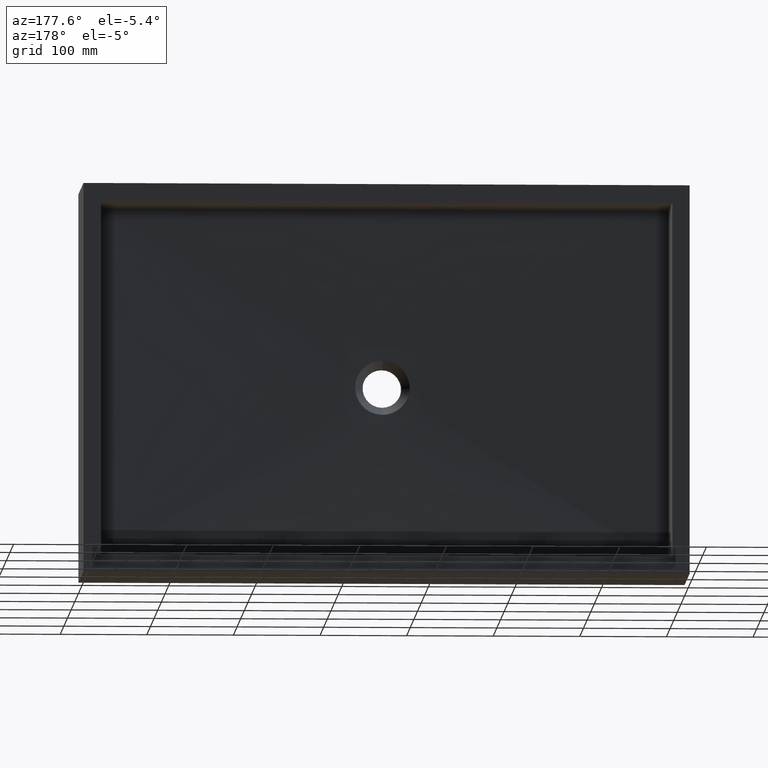
[diagram: clean part render]
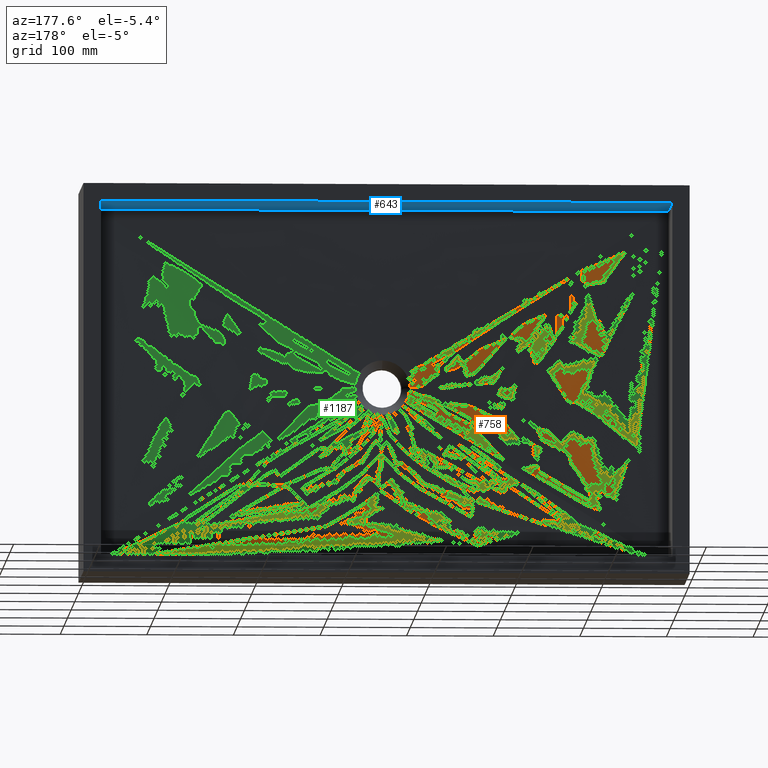
[diagram: same view with three faces highlighted in distinct colors, each labeled with its STEP entity id]
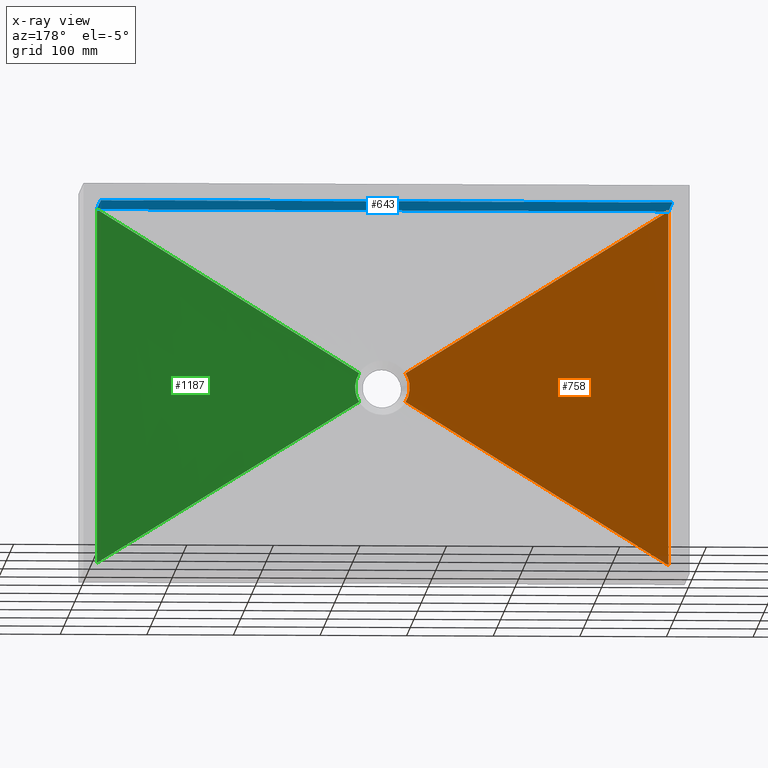
[diagram: x-ray of the same camera — body ghosted, the three highlighted faces saturated]
A machine part, auxiliary view with three faces highlighted in distinct colors.
The next image is the same camera in x-ray (body ghosted, the three faces saturated) — at least one of them is partly hidden behind the body in this view.
Their STEP definitions:

[orange] entity #758 — the highlighted face is a freeform B-spline surface patch.
#19 = LINE ( 'NONE', #312, #293 ) ;
#20 = ORIENTED_EDGE ( 'NONE', *, *, #735, .T. ) ;
#28 = ORIENTED_EDGE ( 'NONE', *, *, #736, .F. ) ;
#31 = LINE ( 'NONE', #980, #95 ) ;
#41 = VERTEX_POINT ( 'NONE', #215 ) ;
#95 = VECTOR ( 'NONE', #794, 1000.000000000000200 ) ;
#107 = CARTESIAN_POINT ( 'NONE',  ( 318.6073830098105200, 24.99999999999999600, -227.9957867683870600 ) ) ;
#119 = VERTEX_POINT ( 'NONE', #662 ) ;
#121 = CARTESIAN_POINT ( 'NONE',  ( 19.99999999999999600, 30.00000000000000000, -156.6666666666662300 ) ) ;
#132 = CARTESIAN_POINT ( 'NONE',  ( 19.99999999999999600, 30.00000000000000000, -88.33333333333313000 ) ) ;
#161 = CARTESIAN_POINT ( 'NONE',  ( 319.3460860394343400, 25.00000000000000400, -217.6011662012561500 ) ) ;
#162 = FACE_OUTER_BOUND ( 'NONE', #491, .T. ) ;
#177 = CARTESIAN_POINT ( 'NONE',  ( 19.99999999999999600, 30.00000000000000000, -139.5833333333329400 ) ) ;
#181 = CARTESIAN_POINT ( 'NONE',  ( 319.0304572677870900, 25.00000000000000400, -219.0536933469580000 ) ) ;
#197 = CARTESIAN_POINT ( 'NONE',  ( 321.8447380547628400, 25.00000000000000400, -210.8020132068291400 ) ) ;
#201 = CARTESIAN_POINT ( 'NONE',  ( 19.99999999999999600, 30.00000000000000000, -259.1666666666661200 ) ) ;
#205 = CARTESIAN_POINT ( 'NONE',  ( 318.5000000000000600, 25.00000000000000700, -226.4979317703671000 ) ) ;
#215 = CARTESIAN_POINT ( 'NONE',  ( 20.00000000000001800, 30.00000000000000400, -430.0000000000000000 ) ) ;
#222 = CARTESIAN_POINT ( 'NONE',  ( 318.5000000000000600, 25.00000000000000700, -226.4979317703671000 ) ) ;
#245 = CARTESIAN_POINT ( 'NONE',  ( 20.00000000000000000, 30.00000000000000400, -430.0000000000000000 ) ) ;
#293 = VECTOR ( 'NONE', #487, 1000.000000000000000 ) ;
#312 = CARTESIAN_POINT ( 'NONE',  ( 171.6213002962002500, 27.50000000000000400, -114.1889895779425900 ) ) ;
#319 = CARTESIAN_POINT ( 'NONE',  ( 318.6073830098105200, 25.00000000000000000, -222.0042132316130500 ) ) ;
#346 = CARTESIAN_POINT ( 'NONE',  ( 319.3460860394343400, 24.99999999999999600, -232.3988337987440200 ) ) ;
#385 = CARTESIAN_POINT ( 'NONE',  ( 323.2426005924004400, 25.00000000000000000, -208.3779791558851900 ) ) ;
#387 = CARTESIAN_POINT ( 'NONE',  ( 20.00000000000000000, 30.00000000000000400, -20.00000000000012800 ) ) ;
#434 = CARTESIAN_POINT ( 'NONE',  ( 19.99999999999999600, 30.00000000000000000, -190.8333333333328300 ) ) ;
#438 = CARTESIAN_POINT ( 'NONE',  ( 20.00000000000000000, 30.00000000000000000, -242.0833333333328000 ) ) ;
#439 = CARTESIAN_POINT ( 'NONE',  ( 19.99999999999999600, 30.00000000000000000, -105.4166666666664000 ) ) ;
#458 = CARTESIAN_POINT ( 'NONE',  ( 322.5116704946697700, 25.00000000000000400, -240.4454016624021300 ) ) ;
#467 = CARTESIAN_POINT ( 'NONE',  ( 321.8447380547628400, 25.00000000000000400, -239.1979867931709400 ) ) ;
#472 = CARTESIAN_POINT ( 'NONE',  ( 320.1671080139870500, 25.00000000000000400, -235.2178147582585300 ) ) ;
#475 = CARTESIAN_POINT ( 'NONE',  ( 320.6723928067730200, 24.99999999999999600, -236.5841728450399700 ) ) ;
#484 = CARTESIAN_POINT ( 'NONE',  ( 323.2426005924004400, 25.00000000000000000, -241.6220208441149300 ) ) ;
#487 = DIRECTION ( 'NONE',  ( 0.8493579470568617400, -0.01400459476006333400, -0.5276314519595658400 ) ) ;
#490 = CARTESIAN_POINT ( 'NONE',  ( 20.00000000000000000, 30.00000000000000400, -20.00000000000000000 ) ) ;
#491 = EDGE_LOOP ( 'NONE', ( #20, #28, #789, #592 ) ) ;
#500 = CARTESIAN_POINT ( 'NONE',  ( 322.5116704946697700, 25.00000000000000400, -209.5545983375979800 ) ) ;
#504 = CARTESIAN_POINT ( 'NONE',  ( 320.1671080139870500, 25.00000000000000700, -214.7821852417416200 ) ) ;
#506 = CARTESIAN_POINT ( 'NONE',  ( 319.0304572677870900, 25.00000000000000000, -230.9463066530420600 ) ) ;
#515 = CARTESIAN_POINT ( 'NONE',  ( 318.4999999999999400, 25.00000000000000400, -223.5020682296331200 ) ) ;
#518 = CARTESIAN_POINT ( 'NONE',  ( 318.6073830098105200, 24.99999999999999600, -227.9957867683870600 ) ) ;
#521 = EDGE_CURVE ( 'NONE', #119, #41, #31, .T. ) ;
#524 = CARTESIAN_POINT ( 'NONE',  ( 323.2426005924004400, 25.00000000000000000, -208.3779791558851900 ) ) ;
#542 = CARTESIAN_POINT ( 'NONE',  ( 321.8447380547628400, 25.00000000000000400, -210.8020132068291400 ) ) ;
#547 = LINE ( 'NONE', #881, #903 ) ;
#558 = CARTESIAN_POINT ( 'NONE',  ( 322.5116704946697700, 25.00000000000000400, -240.4454016624021300 ) ) ;
#579 = CARTESIAN_POINT ( 'NONE',  ( 321.8447380547628400, 25.00000000000000400, -239.1979867931709400 ) ) ;
#581 = CARTESIAN_POINT ( 'NONE',  ( 19.99999999999999600, 30.00000000000000400, -412.9166666666665700 ) ) ;
#586 = CARTESIAN_POINT ( 'NONE',  ( 320.6723928067730200, 24.99999999999999600, -236.5841728450399700 ) ) ;
#592 = ORIENTED_EDGE ( 'NONE', *, *, #521, .F. ) ;
#597 = CARTESIAN_POINT ( 'NONE',  ( 19.99999999999999600, 30.00000000000000400, -395.8333333333331400 ) ) ;
#608 = CARTESIAN_POINT ( 'NONE',  ( 318.6073830098105200, 25.00000000000000000, -222.0042132316130500 ) ) ;
#611 = CARTESIAN_POINT ( 'NONE',  ( 319.0304572677870900, 25.00000000000000400, -219.0536933469580000 ) ) ;
#622 = CARTESIAN_POINT ( 'NONE',  ( 319.3460860394343400, 25.00000000000000400, -217.6011662012561500 ) ) ;
#623 = CARTESIAN_POINT ( 'NONE',  ( 319.3460860394343400, 24.99999999999999600, -232.3988337987440200 ) ) ;
#624 = CARTESIAN_POINT ( 'NONE',  ( 19.99999999999999600, 30.00000000000000000, -207.9166666666661500 ) ) ;
#630 = CARTESIAN_POINT ( 'NONE',  ( 19.99999999999999600, 30.00000000000000000, -344.5833333333330300 ) ) ;
#631 = CARTESIAN_POINT ( 'NONE',  ( 320.1671080139870500, 25.00000000000000400, -235.2178147582585300 ) ) ;
#636 = CARTESIAN_POINT ( 'NONE',  ( 19.99999999999999600, 30.00000000000000000, -361.6666666666663400 ) ) ;
#662 = CARTESIAN_POINT ( 'NONE',  ( 323.2426005924004400, 25.00000000000000000, -241.6220208441149300 ) ) ;
#669 = CARTESIAN_POINT ( 'NONE',  ( 19.99999999999999600, 30.00000000000000000, -310.4166666666662300 ) ) ;
#677 = VERTEX_POINT ( 'NONE', #385 ) ;
#699 = CARTESIAN_POINT ( 'NONE',  ( 19.99999999999999600, 30.00000000000000000, -293.3333333333328600 ) ) ;
#735 = EDGE_CURVE ( 'NONE', #119, #677, #943, .T. ) ;
#736 = EDGE_CURVE ( 'NONE', #1175, #677, #19, .T. ) ;
#758 = ADVANCED_FACE ( 'NONE', ( #162 ), #1144, .T. ) ;
#789 = ORIENTED_EDGE ( 'NONE', *, *, #1156, .T. ) ;
#794 = DIRECTION ( 'NONE',  ( -0.8493579470568618500, 0.01400459476006333600, -0.5276314519595655100 ) ) ;
#804 = CARTESIAN_POINT ( 'NONE',  ( 323.2426005924004400, 25.00000000000000000, -241.6220208441149300 ) ) ;
#822 = CARTESIAN_POINT ( 'NONE',  ( 320.1671080139870500, 25.00000000000000700, -214.7821852417416200 ) ) ;
#861 = CARTESIAN_POINT ( 'NONE',  ( 19.99999999999999600, 30.00000000000000000, -54.16666666666660700 ) ) ;
#863 = CARTESIAN_POINT ( 'NONE',  ( 322.5116704946697700, 25.00000000000000400, -209.5545983375979800 ) ) ;
#880 = DIRECTION ( 'NONE',  ( 2.030895776753327800E-016, -0.0000000000000000000, -1.000000000000000000 ) ) ;
#881 = CARTESIAN_POINT ( 'NONE',  ( 19.99999999999999600, 30.00000000000000000, -224.9999999999994900 ) ) ;
#893 = CARTESIAN_POINT ( 'NONE',  ( 323.2426005924004400, 25.00000000000000000, -208.3779791558851900 ) ) ;
#903 = VECTOR ( 'NONE', #880, 1000.000000000000000 ) ;
#942 = CARTESIAN_POINT ( 'NONE',  ( 319.0304572677870900, 25.00000000000000000, -230.9463066530420600 ) ) ;
#943 = B_SPLINE_CURVE_WITH_KNOTS ( 'NONE', 3,
 ( #484, #458, #467, #475, #472, #346, #506, #518, #205, #515, #608, #611, #622, #504, #989, #542, #500, #524 ),
 .UNSPECIFIED., .F., .F.,
 ( 4, 2, 2, 2, 2, 2, 2, 2, 4 ),
 ( 0.0000000000000000000, 0.1250000000000000000, 0.2500000000000000000, 0.3750000000000000000, 0.5000000000000000000, 0.6250000000000000000, 0.7500000000000000000, 0.8750000000000000000, 1.000000000000000000 ),
 .UNSPECIFIED. ) ;
#980 = CARTESIAN_POINT ( 'NONE',  ( 171.6213002962002500, 27.50000000000000400, -335.8110104220574500 ) ) ;
#989 = CARTESIAN_POINT ( 'NONE',  ( 320.6723928067731300, 25.00000000000000000, -213.4158271549601700 ) ) ;
#1116 = CARTESIAN_POINT ( 'NONE',  ( 318.4999999999999400, 25.00000000000000400, -223.5020682296331200 ) ) ;
#1144 = B_SPLINE_SURFACE_WITH_KNOTS ( 'NONE', 3, 1, ( 
 ( #804, #245 ),
 ( #558, #581 ),
 ( #579, #597 ),
 ( #586, #636 ),
 ( #631, #630 ),
 ( #623, #669 ),
 ( #942, #699 ),
 ( #107, #201 ),
 ( #222, #438 ),
 ( #1116, #624 ),
 ( #319, #434 ),
 ( #181, #121 ),
 ( #161, #177 ),
 ( #822, #439 ),
 ( #1162, #132 ),
 ( #197, #861 ),
 ( #863, #1160 ),
 ( #893, #387 ) ),
 .UNSPECIFIED., .F., .F., .F.,
 ( 4, 2, 2, 2, 2, 2, 2, 2, 4 ),
 ( 2, 2 ),
 ( 0.0000000000000000000, 0.1250000000000000000, 0.2500000000000000000, 0.3750000000000000000, 0.5000000000000000000, 0.6250000000000000000, 0.7500000000000000000, 0.8750000000000000000, 1.000000000000000000 ),
 ( 0.0000000000000000000, 1.000000000000000000 ),
 .UNSPECIFIED. ) ;
#1156 = EDGE_CURVE ( 'NONE', #1175, #41, #547, .T. ) ;
#1160 = CARTESIAN_POINT ( 'NONE',  ( 19.99999999999999600, 30.00000000000000000, -37.08333333333335700 ) ) ;
#1162 = CARTESIAN_POINT ( 'NONE',  ( 320.6723928067731300, 25.00000000000000000, -213.4158271549601700 ) ) ;
#1175 = VERTEX_POINT ( 'NONE', #490 ) ;

[blue] entity #643 — the highlighted planar face has unit normal (-0, 0, 1).
#5 = VERTEX_POINT ( 'NONE', #721 ) ;
#68 = LINE ( 'NONE', #855, #105 ) ;
#78 = LINE ( 'NONE', #568, #1127 ) ;
#105 = VECTOR ( 'NONE', #997, 1000.000000000000000 ) ;
#193 = VERTEX_POINT ( 'NONE', #497 ) ;
#211 = EDGE_CURVE ( 'NONE', #424, #5, #496, .T. ) ;
#239 = DIRECTION ( 'NONE',  ( 1.000000000000000000, 0.0000000000000000000, 0.0000000000000000000 ) ) ;
#302 = FACE_OUTER_BOUND ( 'NONE', #483, .T. ) ;
#424 = VERTEX_POINT ( 'NONE', #1197 ) ;
#427 = VECTOR ( 'NONE', #834, 1000.000000000000000 ) ;
#483 = EDGE_LOOP ( 'NONE', ( #584, #1158, #1118, #646 ) ) ;
#496 = LINE ( 'NONE', #918, #427 ) ;
#497 = CARTESIAN_POINT ( 'NONE',  ( 679.9999999999998900, 30.00000000000002800, -20.00000000000000000 ) ) ;
#531 = CARTESIAN_POINT ( 'NONE',  ( 20.00000000000000000, -776.9813382572325500, -20.00000000000000000 ) ) ;
#568 = CARTESIAN_POINT ( 'NONE',  ( 679.9999999999998900, -776.9813382572325500, -20.00000000000000000 ) ) ;
#571 = AXIS2_PLACEMENT_3D ( 'NONE', #531, #1217, #239 ) ;
#584 = ORIENTED_EDGE ( 'NONE', *, *, #1005, .T. ) ;
#594 = PLANE ( 'NONE',  #571 ) ;
#643 = ADVANCED_FACE ( 'NONE', ( #302 ), #594, .F. ) ;
#646 = ORIENTED_EDGE ( 'NONE', *, *, #775, .F. ) ;
#721 = CARTESIAN_POINT ( 'NONE',  ( 679.9999999999998900, 140.0000000000000000, -20.00000000000000000 ) ) ;
#775 = EDGE_CURVE ( 'NONE', #193, #5, #78, .T. ) ;
#800 = DIRECTION ( 'NONE',  ( -1.000000000000000000, -0.0000000000000000000, -1.261617073437679700E-016 ) ) ;
#834 = DIRECTION ( 'NONE',  ( 1.000000000000000000, 0.0000000000000000000, 0.0000000000000000000 ) ) ;
#841 = DIRECTION ( 'NONE',  ( -0.0000000000000000000, 1.000000000000000000, -0.0000000000000000000 ) ) ;
#855 = CARTESIAN_POINT ( 'NONE',  ( 20.00000000000000000, -776.9813382572325500, -20.00000000000000000 ) ) ;
#862 = VECTOR ( 'NONE', #800, 1000.000000000000000 ) ;
#918 = CARTESIAN_POINT ( 'NONE',  ( 20.00000000000000000, 140.0000000000000000, -20.00000000000000000 ) ) ;
#997 = DIRECTION ( 'NONE',  ( -0.0000000000000000000, 1.000000000000000000, -0.0000000000000000000 ) ) ;
#1000 = EDGE_CURVE ( 'NONE', #1060, #424, #68, .T. ) ;
#1005 = EDGE_CURVE ( 'NONE', #193, #1060, #1112, .T. ) ;
#1060 = VERTEX_POINT ( 'NONE', #1203 ) ;
#1112 = LINE ( 'NONE', #1173, #862 ) ;
#1118 = ORIENTED_EDGE ( 'NONE', *, *, #211, .T. ) ;
#1127 = VECTOR ( 'NONE', #841, 1000.000000000000000 ) ;
#1158 = ORIENTED_EDGE ( 'NONE', *, *, #1000, .T. ) ;
#1173 = CARTESIAN_POINT ( 'NONE',  ( 349.9999999999997700, 30.00000000000000000, -19.99999999999999600 ) ) ;
#1197 = CARTESIAN_POINT ( 'NONE',  ( 20.00000000000000000, 140.0000000000000000, -20.00000000000000000 ) ) ;
#1203 = CARTESIAN_POINT ( 'NONE',  ( 20.00000000000000000, 30.00000000000002800, -20.00000000000000000 ) ) ;
#1217 = DIRECTION ( 'NONE',  ( -0.0000000000000000000, 0.0000000000000000000, 1.000000000000000000 ) ) ;

[green] entity #1187 — the highlighted face is a freeform B-spline surface patch.
#26 = VERTEX_POINT ( 'NONE', #686 ) ;
#43 = CARTESIAN_POINT ( 'NONE',  ( 379.8328919860130100, 25.00000000000000400, -214.7821852417416200 ) ) ;
#45 = LINE ( 'NONE', #323, #257 ) ;
#49 = CARTESIAN_POINT ( 'NONE',  ( 679.9999999999998900, 30.00000000000000400, -20.00000000000000000 ) ) ;
#51 = VERTEX_POINT ( 'NONE', #284 ) ;
#64 = CARTESIAN_POINT ( 'NONE',  ( 381.5000000000000600, 25.00000000000000700, -223.5020682296331000 ) ) ;
#72 = LINE ( 'NONE', #596, #683 ) ;
#82 = CARTESIAN_POINT ( 'NONE',  ( 381.5000000000001100, 25.00000000000000400, -226.4979317703671300 ) ) ;
#96 = CARTESIAN_POINT ( 'NONE',  ( 376.7573994075996200, 25.00000000000000000, -208.3779791558851900 ) ) ;
#98 = CARTESIAN_POINT ( 'NONE',  ( 380.6539139605657700, 25.00000000000000400, -232.3988337987440200 ) ) ;
#101 = CARTESIAN_POINT ( 'NONE',  ( 380.9695427322130300, 25.00000000000000400, -230.9463066530420300 ) ) ;
#113 = CARTESIAN_POINT ( 'NONE',  ( 679.9999999999998900, 30.00000000000000000, -190.8333333333332900 ) ) ;
#117 = FACE_OUTER_BOUND ( 'NONE', #1117, .T. ) ;
#130 = CARTESIAN_POINT ( 'NONE',  ( 379.3276071932269200, 24.99999999999999600, -213.4158271549601400 ) ) ;
#157 = CARTESIAN_POINT ( 'NONE',  ( 376.7573994075996200, 25.00000000000000000, -241.6220208441149300 ) ) ;
#189 = CARTESIAN_POINT ( 'NONE',  ( 380.9695427322130900, 25.00000000000000000, -219.0536933469580300 ) ) ;
#227 = CARTESIAN_POINT ( 'NONE',  ( 377.4883295053303400, 25.00000000000000400, -240.4454016624022200 ) ) ;
#228 = CARTESIAN_POINT ( 'NONE',  ( 679.9999999999998900, 30.00000000000000000, -259.1666666666666300 ) ) ;
#230 = CARTESIAN_POINT ( 'NONE',  ( 380.6539139605657700, 24.99999999999999600, -217.6011662012561200 ) ) ;
#238 = CARTESIAN_POINT ( 'NONE',  ( 378.1552619452373800, 25.00000000000000400, -210.8020132068291400 ) ) ;
#247 = VECTOR ( 'NONE', #849, 1000.000000000000000 ) ;
#256 = CARTESIAN_POINT ( 'NONE',  ( 679.9999999999998900, 30.00000000000000400, -429.9999999999998900 ) ) ;
#257 = VECTOR ( 'NONE', #365, 1000.000000000000100 ) ;
#258 = CARTESIAN_POINT ( 'NONE',  ( 380.9695427322130900, 25.00000000000000000, -219.0536933469580300 ) ) ;
#274 = CARTESIAN_POINT ( 'NONE',  ( 679.9999999999998900, 30.00000000000000000, -361.6666666666665700 ) ) ;
#278 = CARTESIAN_POINT ( 'NONE',  ( 381.3926169901894800, 24.99999999999999600, -222.0042132316130500 ) ) ;
#284 = CARTESIAN_POINT ( 'NONE',  ( 679.9999999999998900, 30.00000000000000400, -429.9999999999998900 ) ) ;
#299 = CARTESIAN_POINT ( 'NONE',  ( 381.5000000000000600, 25.00000000000000700, -223.5020682296331000 ) ) ;
#301 = CARTESIAN_POINT ( 'NONE',  ( 679.9999999999998900, 30.00000000000000400, -20.00000000000000000 ) ) ;
#323 = CARTESIAN_POINT ( 'NONE',  ( 528.3786997037998400, 27.50000000000000400, -114.1889895779425900 ) ) ;
#330 = ORIENTED_EDGE ( 'NONE', *, *, #958, .T. ) ;
#351 = CARTESIAN_POINT ( 'NONE',  ( 379.3276071932270400, 25.00000000000000000, -236.5841728450399700 ) ) ;
#357 = CARTESIAN_POINT ( 'NONE',  ( 378.1552619452373300, 25.00000000000000400, -239.1979867931709700 ) ) ;
#358 = CARTESIAN_POINT ( 'NONE',  ( 528.3786997037998400, 27.50000000000000400, -335.8110104220573900 ) ) ;
#365 = DIRECTION ( 'NONE',  ( 0.8493579470568616300, 0.01400459476006333700, 0.5276314519595660700 ) ) ;
#367 = CARTESIAN_POINT ( 'NONE',  ( 381.3926169901894800, 25.00000000000000000, -227.9957867683871200 ) ) ;
#370 = CARTESIAN_POINT ( 'NONE',  ( 377.4883295053302800, 25.00000000000000400, -209.5545983375979500 ) ) ;
#408 = CARTESIAN_POINT ( 'NONE',  ( 376.7573994075996200, 25.00000000000000000, -241.6220208441149300 ) ) ;
#432 = CARTESIAN_POINT ( 'NONE',  ( 376.7573994075996200, 25.00000000000000000, -241.6220208441149300 ) ) ;
#446 = CARTESIAN_POINT ( 'NONE',  ( 381.3926169901894800, 25.00000000000000000, -227.9957867683871200 ) ) ;
#468 = CARTESIAN_POINT ( 'NONE',  ( 679.9999999999998900, 30.00000000000000000, -344.5833333333332600 ) ) ;
#469 = VERTEX_POINT ( 'NONE', #157 ) ;
#499 = B_SPLINE_CURVE_WITH_KNOTS ( 'NONE', 3,
 ( #768, #370, #238, #731, #43, #806, #189, #278, #299, #82, #367, #101, #940, #1059, #351, #1171, #227, #432 ),
 .UNSPECIFIED., .F., .F.,
 ( 4, 2, 2, 2, 2, 2, 2, 2, 4 ),
 ( 0.0000000000000000000, 0.1250000000000000000, 0.2500000000000000000, 0.3750000000000000000, 0.5000000000000000000, 0.6250000000000000000, 0.7500000000000000000, 0.8750000000000000000, 1.000000000000000000 ),
 .UNSPECIFIED. ) ;
#530 = CARTESIAN_POINT ( 'NONE',  ( 679.9999999999998900, 30.00000000000000000, -207.9166666666666000 ) ) ;
#543 = LINE ( 'NONE', #358, #247 ) ;
#549 = DIRECTION ( 'NONE',  ( -0.0000000000000000000, -0.0000000000000000000, 1.000000000000000000 ) ) ;
#596 = CARTESIAN_POINT ( 'NONE',  ( 679.9999999999998900, 30.00000000000000000, -224.9999999999999100 ) ) ;
#619 = CARTESIAN_POINT ( 'NONE',  ( 679.9999999999998900, 30.00000000000000000, -293.3333333333332000 ) ) ;
#647 = CARTESIAN_POINT ( 'NONE',  ( 679.9999999999998900, 30.00000000000000000, -105.4166666666666400 ) ) ;
#683 = VECTOR ( 'NONE', #549, 1000.000000000000000 ) ;
#686 = CARTESIAN_POINT ( 'NONE',  ( 376.7573994075996200, 25.00000000000000000, -208.3779791558851900 ) ) ;
#696 = CARTESIAN_POINT ( 'NONE',  ( 381.5000000000001100, 25.00000000000000400, -226.4979317703671300 ) ) ;
#714 = CARTESIAN_POINT ( 'NONE',  ( 378.1552619452373800, 25.00000000000000400, -210.8020132068291400 ) ) ;
#731 = CARTESIAN_POINT ( 'NONE',  ( 379.3276071932269200, 24.99999999999999600, -213.4158271549601400 ) ) ;
#733 = CARTESIAN_POINT ( 'NONE',  ( 379.3276071932270400, 25.00000000000000000, -236.5841728450399700 ) ) ;
#741 = CARTESIAN_POINT ( 'NONE',  ( 377.4883295053302800, 25.00000000000000400, -209.5545983375979500 ) ) ;
#764 = CARTESIAN_POINT ( 'NONE',  ( 679.9999999999998900, 30.00000000000000000, -395.8333333333332600 ) ) ;
#768 = CARTESIAN_POINT ( 'NONE',  ( 376.7573994075996200, 25.00000000000000000, -208.3779791558851900 ) ) ;
#769 = CARTESIAN_POINT ( 'NONE',  ( 679.9999999999998900, 30.00000000000000000, -156.6666666666666300 ) ) ;
#793 = CARTESIAN_POINT ( 'NONE',  ( 379.8328919860130100, 25.00000000000000700, -235.2178147582585000 ) ) ;
#806 = CARTESIAN_POINT ( 'NONE',  ( 380.6539139605657700, 24.99999999999999600, -217.6011662012561200 ) ) ;
#811 = CARTESIAN_POINT ( 'NONE',  ( 380.9695427322130300, 25.00000000000000400, -230.9463066530420300 ) ) ;
#813 = B_SPLINE_SURFACE_WITH_KNOTS ( 'NONE', 3, 1, ( 
 ( #96, #301 ),
 ( #741, #913 ),
 ( #714, #827 ),
 ( #130, #1016 ),
 ( #1152, #647 ),
 ( #230, #973 ),
 ( #258, #769 ),
 ( #898, #113 ),
 ( #64, #530 ),
 ( #696, #1192 ),
 ( #446, #228 ),
 ( #811, #619 ),
 ( #98, #910 ),
 ( #793, #468 ),
 ( #733, #274 ),
 ( #357, #764 ),
 ( #840, #1020 ),
 ( #408, #256 ) ),
 .UNSPECIFIED., .F., .F., .F.,
 ( 4, 2, 2, 2, 2, 2, 2, 2, 4 ),
 ( 2, 2 ),
 ( 0.0000000000000000000, 0.1250000000000000000, 0.2500000000000000000, 0.3750000000000000000, 0.5000000000000000000, 0.6250000000000000000, 0.7500000000000000000, 0.8750000000000000000, 1.000000000000000000 ),
 ( 0.0000000000000000000, 1.000000000000000000 ),
 .UNSPECIFIED. ) ;
#827 = CARTESIAN_POINT ( 'NONE',  ( 679.9999999999998900, 30.00000000000000400, -54.16666666666665700 ) ) ;
#840 = CARTESIAN_POINT ( 'NONE',  ( 377.4883295053303400, 25.00000000000000400, -240.4454016624022200 ) ) ;
#847 = ORIENTED_EDGE ( 'NONE', *, *, #1043, .T. ) ;
#849 = DIRECTION ( 'NONE',  ( 0.8493579470568619600, 0.01400459476006334300, -0.5276314519595655100 ) ) ;
#898 = CARTESIAN_POINT ( 'NONE',  ( 381.3926169901894800, 24.99999999999999600, -222.0042132316130500 ) ) ;
#908 = EDGE_CURVE ( 'NONE', #26, #1239, #45, .T. ) ;
#910 = CARTESIAN_POINT ( 'NONE',  ( 679.9999999999998900, 30.00000000000000000, -310.4166666666665700 ) ) ;
#913 = CARTESIAN_POINT ( 'NONE',  ( 679.9999999999998900, 30.00000000000000400, -37.08333333333332900 ) ) ;
#940 = CARTESIAN_POINT ( 'NONE',  ( 380.6539139605657700, 25.00000000000000400, -232.3988337987440200 ) ) ;
#958 = EDGE_CURVE ( 'NONE', #26, #469, #499, .T. ) ;
#973 = CARTESIAN_POINT ( 'NONE',  ( 679.9999999999998900, 30.00000000000000000, -139.5833333333332900 ) ) ;
#1002 = ORIENTED_EDGE ( 'NONE', *, *, #908, .F. ) ;
#1016 = CARTESIAN_POINT ( 'NONE',  ( 679.9999999999998900, 30.00000000000000000, -88.33333333333331400 ) ) ;
#1020 = CARTESIAN_POINT ( 'NONE',  ( 679.9999999999998900, 30.00000000000000000, -412.9166666666665700 ) ) ;
#1043 = EDGE_CURVE ( 'NONE', #469, #51, #543, .T. ) ;
#1059 = CARTESIAN_POINT ( 'NONE',  ( 379.8328919860130100, 25.00000000000000700, -235.2178147582585000 ) ) ;
#1117 = EDGE_LOOP ( 'NONE', ( #330, #847, #1220, #1002 ) ) ;
#1152 = CARTESIAN_POINT ( 'NONE',  ( 379.8328919860130100, 25.00000000000000400, -214.7821852417416200 ) ) ;
#1171 = CARTESIAN_POINT ( 'NONE',  ( 378.1552619452373300, 25.00000000000000400, -239.1979867931709700 ) ) ;
#1187 = ADVANCED_FACE ( 'NONE', ( #117 ), #813, .T. ) ;
#1192 = CARTESIAN_POINT ( 'NONE',  ( 679.9999999999998900, 30.00000000000000000, -242.0833333333332600 ) ) ;
#1208 = EDGE_CURVE ( 'NONE', #51, #1239, #72, .T. ) ;
#1220 = ORIENTED_EDGE ( 'NONE', *, *, #1208, .T. ) ;
#1239 = VERTEX_POINT ( 'NONE', #49 ) ;